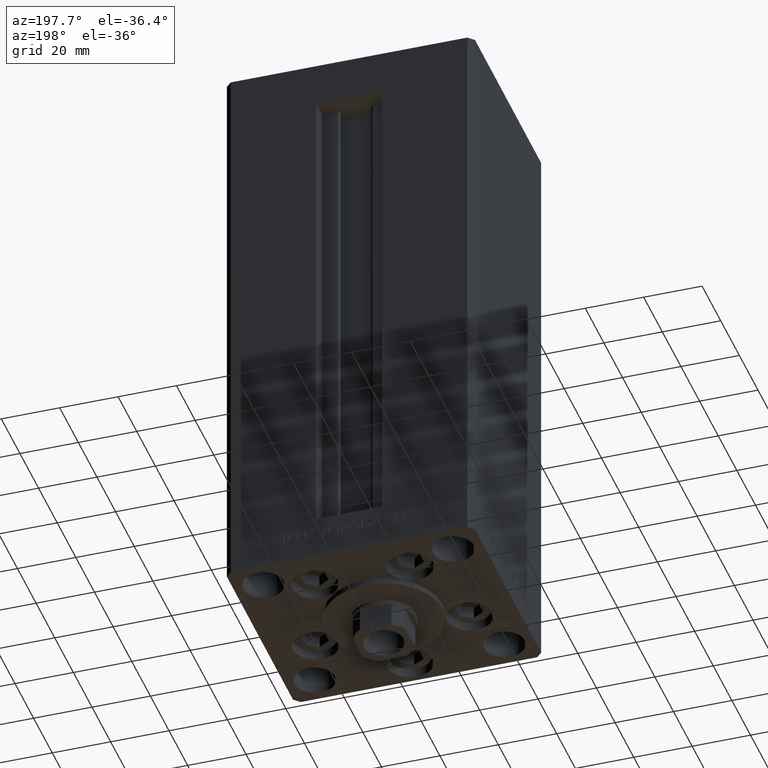
[diagram: clean part render]
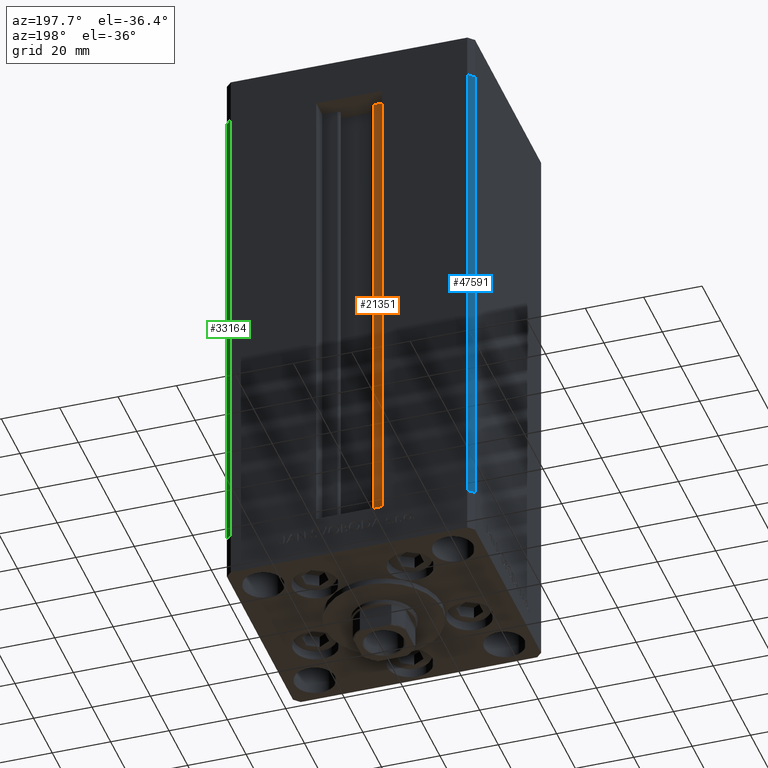
[diagram: same view with three faces highlighted in distinct colors, each labeled with its STEP entity id]
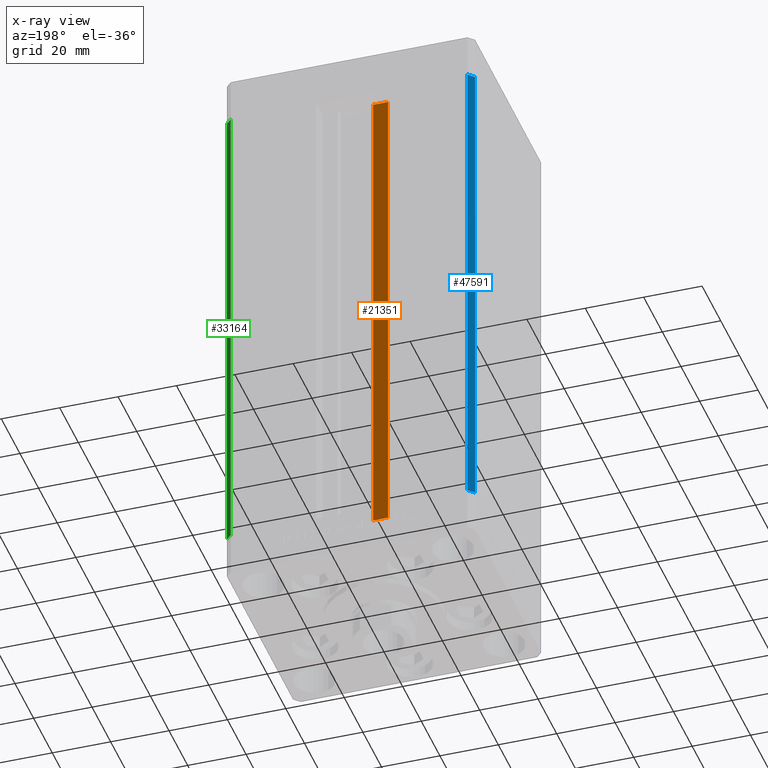
[diagram: x-ray of the same camera — body ghosted, the three highlighted faces saturated]
A machine part, auxiliary view with three faces highlighted in distinct colors.
The next image is the same camera in x-ray (body ghosted, the three faces saturated) — at least one of them is partly hidden behind the body in this view.
Their STEP definitions:

[orange] entity #21351 — the highlighted planar face has unit normal (0, -1, 0).
#132 = CARTESIAN_POINT ( 'NONE',  ( -6.183333333333999704, 30.99999999999999289, 168.5000000000000000 ) ) ;
#2033 = DIRECTION ( 'NONE',  ( -0.000000000000000000, -0.000000000000000000, 1.000000000000000000 ) ) ;
#2676 = VERTEX_POINT ( 'NONE', #32073 ) ;
#3626 = VERTEX_POINT ( 'NONE', #22924 ) ;
#6612 = ORIENTED_EDGE ( 'NONE', *, *, #33079, .F. ) ;
#9140 = VECTOR ( 'NONE', #44541, 1000.000000000000000 ) ;
#9420 = FACE_OUTER_BOUND ( 'NONE', #21626, .T. ) ;
#10208 = CARTESIAN_POINT ( 'NONE',  ( -6.183333333333999704, 30.99999999999999289, 0.000000000000000000 ) ) ;
#12014 = CARTESIAN_POINT ( 'NONE',  ( -11.25000000000000000, 30.99999999999999289, 168.5000000000000000 ) ) ;
#13385 = DIRECTION ( 'NONE',  ( 0.000000000000000000, -1.000000000000000000, -0.000000000000000000 ) ) ;
#15190 = VERTEX_POINT ( 'NONE', #132 ) ;
#17863 = EDGE_CURVE ( 'NONE', #2676, #36439, #40577, .T. ) ;
#17892 = ORIENTED_EDGE ( 'NONE', *, *, #17863, .T. ) ;
#21351 = ADVANCED_FACE ( 'NONE', ( #9420 ), #39125, .F. ) ;
#21626 = EDGE_LOOP ( 'NONE', ( #35270, #6612, #17892, #31008 ) ) ;
#22924 = CARTESIAN_POINT ( 'NONE',  ( -6.183333333333999704, 30.99999999999999289, 0.000000000000000000 ) ) ;
#23289 = LINE ( 'NONE', #27759, #35890 ) ;
#25747 = LINE ( 'NONE', #29224, #9140 ) ;
#27330 = EDGE_CURVE ( 'NONE', #3626, #15190, #44107, .T. ) ;
#27759 = CARTESIAN_POINT ( 'NONE',  ( -6.183333333333999704, 30.99999999999999289, 0.000000000000000000 ) ) ;
#28472 = CARTESIAN_POINT ( 'NONE',  ( -11.25000000000000000, 30.99999999999999289, 0.000000000000000000 ) ) ;
#29207 = DIRECTION ( 'NONE',  ( -0.000000000000000000, -0.000000000000000000, 1.000000000000000000 ) ) ;
#29224 = CARTESIAN_POINT ( 'NONE',  ( 0.000000000000000000, 30.99999999999999289, 168.5000000000000000 ) ) ;
#31008 = ORIENTED_EDGE ( 'NONE', *, *, #39548, .F. ) ;
#32073 = CARTESIAN_POINT ( 'NONE',  ( -11.25000000000000000, 30.99999999999999289, 0.000000000000000000 ) ) ;
#33079 = EDGE_CURVE ( 'NONE', #2676, #3626, #23289, .T. ) ;
#33964 = VECTOR ( 'NONE', #2033, 1000.000000000000000 ) ;
#35270 = ORIENTED_EDGE ( 'NONE', *, *, #27330, .F. ) ;
#35654 = DIRECTION ( 'NONE',  ( 0.000000000000000000, 0.000000000000000000, -1.000000000000000000 ) ) ;
#35890 = VECTOR ( 'NONE', #39388, 1000.000000000000000 ) ;
#36439 = VERTEX_POINT ( 'NONE', #12014 ) ;
#39125 = PLANE ( 'NONE',  #42416 ) ;
#39388 = DIRECTION ( 'NONE',  ( 1.000000000000000000, -0.000000000000000000, -0.000000000000000000 ) ) ;
#39548 = EDGE_CURVE ( 'NONE', #15190, #36439, #25747, .T. ) ;
#40577 = LINE ( 'NONE', #28472, #47871 ) ;
#42416 = AXIS2_PLACEMENT_3D ( 'NONE', #47029, #13385, #35654 ) ;
#44107 = LINE ( 'NONE', #10208, #33964 ) ;
#44541 = DIRECTION ( 'NONE',  ( -1.000000000000000000, 0.000000000000000000, 0.000000000000000000 ) ) ;
#47029 = CARTESIAN_POINT ( 'NONE',  ( -6.183333333333999704, 30.99999999999999289, 0.000000000000000000 ) ) ;
#47871 = VECTOR ( 'NONE', #29207, 1000.000000000000000 ) ;

[blue] entity #47591 — the highlighted planar face has unit normal (0.7071, -0.7071, 0).
#2093 = CARTESIAN_POINT ( 'NONE',  ( -42.50000000000000711, 35.50000000000001421, 168.5000000000000000 ) ) ;
#2485 = CARTESIAN_POINT ( 'NONE',  ( -40.50000000000000000, 37.50000000000000711, 168.5000000000000000 ) ) ;
#5623 = CARTESIAN_POINT ( 'NONE',  ( -40.50000000000000000, 37.50000000000000711, 168.5000000000000000 ) ) ;
#6067 = LINE ( 'NONE', #2093, #43208 ) ;
#6297 = PLANE ( 'NONE',  #37792 ) ;
#8832 = DIRECTION ( 'NONE',  ( -0.000000000000000000, -0.000000000000000000, -1.000000000000000000 ) ) ;
#8883 = DIRECTION ( 'NONE',  ( -0.7071067811865500152, -0.7071067811865451302, 0.000000000000000000 ) ) ;
#9896 = VECTOR ( 'NONE', #8883, 1000.000000000000114 ) ;
#10195 = CARTESIAN_POINT ( 'NONE',  ( -42.50000000000000711, 35.50000000000001421, 0.000000000000000000 ) ) ;
#12937 = EDGE_CURVE ( 'NONE', #23101, #25595, #39089, .T. ) ;
#12990 = VERTEX_POINT ( 'NONE', #16330 ) ;
#13364 = CARTESIAN_POINT ( 'NONE',  ( -40.50000000000000000, 37.50000000000000711, 0.000000000000000000 ) ) ;
#13680 = ORIENTED_EDGE ( 'NONE', *, *, #37294, .F. ) ;
#14114 = EDGE_CURVE ( 'NONE', #12990, #23101, #27663, .T. ) ;
#15435 = CARTESIAN_POINT ( 'NONE',  ( -42.50000000000000711, 35.50000000000001421, 168.5000000000000000 ) ) ;
#15633 = VERTEX_POINT ( 'NONE', #15435 ) ;
#16330 = CARTESIAN_POINT ( 'NONE',  ( -40.50000000000000000, 37.50000000000000711, 168.5000000000000000 ) ) ;
#17263 = ORIENTED_EDGE ( 'NONE', *, *, #14114, .T. ) ;
#17785 = VECTOR ( 'NONE', #32426, 1000.000000000000114 ) ;
#17917 = CARTESIAN_POINT ( 'NONE',  ( -40.50000000000000000, 37.50000000000000711, 168.5000000000000000 ) ) ;
#18394 = FACE_OUTER_BOUND ( 'NONE', #44676, .T. ) ;
#20111 = ORIENTED_EDGE ( 'NONE', *, *, #12937, .T. ) ;
#22555 = VECTOR ( 'NONE', #8832, 1000.000000000000000 ) ;
#23101 = VERTEX_POINT ( 'NONE', #13364 ) ;
#25595 = VERTEX_POINT ( 'NONE', #10195 ) ;
#27663 = LINE ( 'NONE', #5623, #22555 ) ;
#28585 = DIRECTION ( 'NONE',  ( -0.000000000000000000, -0.000000000000000000, -1.000000000000000000 ) ) ;
#29783 = DIRECTION ( 'NONE',  ( 0.7071067811865451302, -0.7071067811865500152, 0.000000000000000000 ) ) ;
#32426 = DIRECTION ( 'NONE',  ( -0.7071067811865500152, -0.7071067811865451302, 0.000000000000000000 ) ) ;
#33490 = ORIENTED_EDGE ( 'NONE', *, *, #42499, .F. ) ;
#36484 = DIRECTION ( 'NONE',  ( 0.7071067811865500152, 0.7071067811865451302, 0.000000000000000000 ) ) ;
#37294 = EDGE_CURVE ( 'NONE', #12990, #15633, #39860, .T. ) ;
#37792 = AXIS2_PLACEMENT_3D ( 'NONE', #17917, #29783, #36484 ) ;
#39089 = LINE ( 'NONE', #42803, #9896 ) ;
#39860 = LINE ( 'NONE', #2485, #17785 ) ;
#42499 = EDGE_CURVE ( 'NONE', #15633, #25595, #6067, .T. ) ;
#42803 = CARTESIAN_POINT ( 'NONE',  ( -40.50000000000000000, 37.50000000000000711, 0.000000000000000000 ) ) ;
#43208 = VECTOR ( 'NONE', #28585, 1000.000000000000000 ) ;
#44676 = EDGE_LOOP ( 'NONE', ( #20111, #33490, #13680, #17263 ) ) ;
#47591 = ADVANCED_FACE ( 'NONE', ( #18394 ), #6297, .F. ) ;

[green] entity #33164 — the highlighted planar face has unit normal (0.7071, 0.7071, 0).
#1887 = LINE ( 'NONE', #32341, #42884 ) ;
#3380 = LINE ( 'NONE', #15010, #41431 ) ;
#3596 = ORIENTED_EDGE ( 'NONE', *, *, #21106, .F. ) ;
#4439 = EDGE_CURVE ( 'NONE', #33782, #42776, #4992, .T. ) ;
#4992 = LINE ( 'NONE', #23294, #18302 ) ;
#5231 = CARTESIAN_POINT ( 'NONE',  ( 40.50000000000000000, 37.50000000000000711, 168.5000000000000000 ) ) ;
#5475 = ORIENTED_EDGE ( 'NONE', *, *, #4439, .T. ) ;
#7028 = EDGE_CURVE ( 'NONE', #9608, #33782, #1887, .T. ) ;
#9230 = ORIENTED_EDGE ( 'NONE', *, *, #7028, .T. ) ;
#9608 = VERTEX_POINT ( 'NONE', #36680 ) ;
#11022 = CARTESIAN_POINT ( 'NONE',  ( 40.50000000000000000, 37.50000000000000711, 0.000000000000000000 ) ) ;
#11189 = EDGE_CURVE ( 'NONE', #38774, #42776, #3380, .T. ) ;
#13754 = LINE ( 'NONE', #28859, #19516 ) ;
#13776 = DIRECTION ( 'NONE',  ( 0.7071067811865500152, -0.7071067811865451302, 0.000000000000000000 ) ) ;
#15010 = CARTESIAN_POINT ( 'NONE',  ( 40.50000000000000000, 37.50000000000000711, 0.000000000000000000 ) ) ;
#15238 = DIRECTION ( 'NONE',  ( 0.7071067811865500152, -0.7071067811865451302, 0.000000000000000000 ) ) ;
#15355 = AXIS2_PLACEMENT_3D ( 'NONE', #5231, #31461, #24033 ) ;
#18302 = VECTOR ( 'NONE', #38397, 1000.000000000000000 ) ;
#19516 = VECTOR ( 'NONE', #29335, 1000.000000000000000 ) ;
#21106 = EDGE_CURVE ( 'NONE', #9608, #38774, #13754, .T. ) ;
#23294 = CARTESIAN_POINT ( 'NONE',  ( 42.50000000000000711, 35.50000000000001421, 168.5000000000000000 ) ) ;
#24033 = DIRECTION ( 'NONE',  ( -0.7071067811865500152, 0.7071067811865451302, 0.000000000000000000 ) ) ;
#27262 = FACE_OUTER_BOUND ( 'NONE', #28873, .T. ) ;
#28859 = CARTESIAN_POINT ( 'NONE',  ( 40.50000000000000000, 37.50000000000000711, 168.5000000000000000 ) ) ;
#28873 = EDGE_LOOP ( 'NONE', ( #44927, #3596, #9230, #5475 ) ) ;
#29335 = DIRECTION ( 'NONE',  ( -0.000000000000000000, -0.000000000000000000, -1.000000000000000000 ) ) ;
#29812 = CARTESIAN_POINT ( 'NONE',  ( 42.50000000000000711, 35.50000000000001421, 168.5000000000000000 ) ) ;
#31461 = DIRECTION ( 'NONE',  ( 0.7071067811865451302, 0.7071067811865500152, -0.000000000000000000 ) ) ;
#32341 = CARTESIAN_POINT ( 'NONE',  ( 40.50000000000000000, 37.50000000000000711, 168.5000000000000000 ) ) ;
#33164 = ADVANCED_FACE ( 'NONE', ( #27262 ), #42354, .T. ) ;
#33782 = VERTEX_POINT ( 'NONE', #29812 ) ;
#36680 = CARTESIAN_POINT ( 'NONE',  ( 40.50000000000000000, 37.50000000000000711, 168.5000000000000000 ) ) ;
#38397 = DIRECTION ( 'NONE',  ( -0.000000000000000000, -0.000000000000000000, -1.000000000000000000 ) ) ;
#38774 = VERTEX_POINT ( 'NONE', #11022 ) ;
#41431 = VECTOR ( 'NONE', #15238, 1000.000000000000114 ) ;
#42354 = PLANE ( 'NONE',  #15355 ) ;
#42776 = VERTEX_POINT ( 'NONE', #43858 ) ;
#42884 = VECTOR ( 'NONE', #13776, 1000.000000000000114 ) ;
#43858 = CARTESIAN_POINT ( 'NONE',  ( 42.50000000000000711, 35.50000000000001421, 0.000000000000000000 ) ) ;
#44927 = ORIENTED_EDGE ( 'NONE', *, *, #11189, .F. ) ;